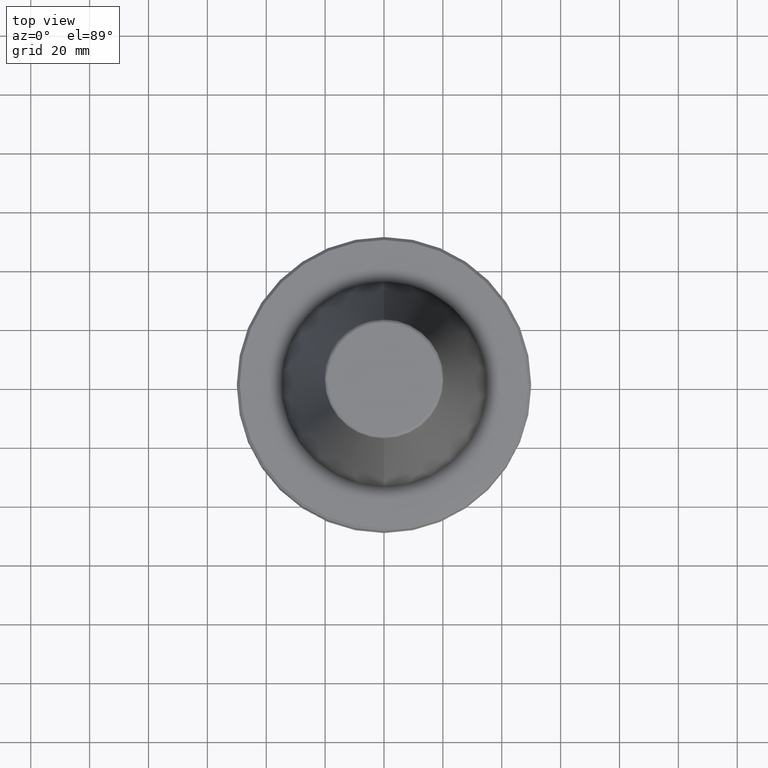
[diagram: clean part render]
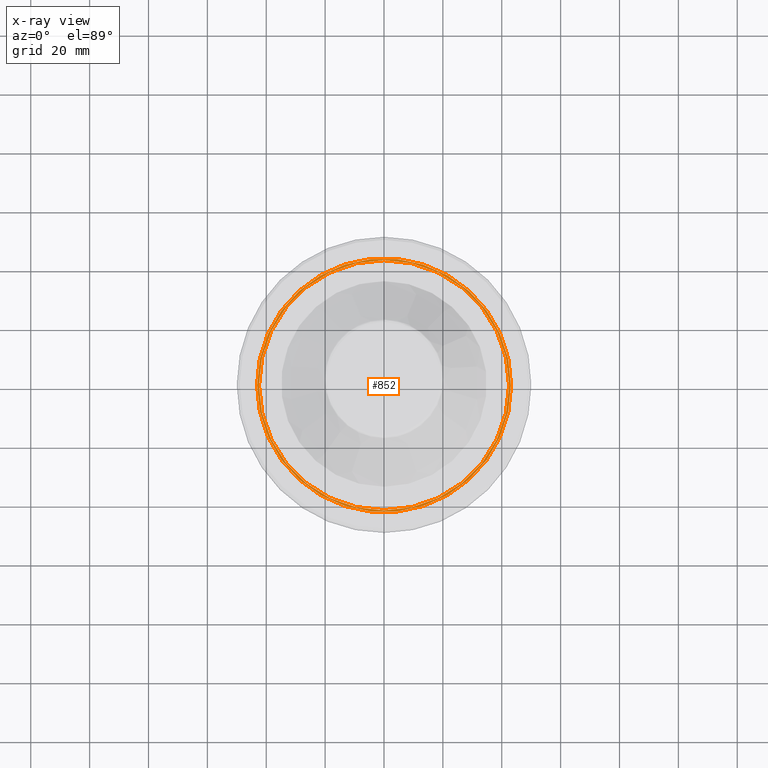
[diagram: x-ray — body ghosted, one internal face saturated and labeled with its STEP entity id]
A machine part, top view, then the same camera in x-ray: the body is ghosted and one INTERNAL B-rep face — a face not visible from any outside direction — is saturated and labeled: STEP entity #852.
In plain terms, the highlighted planar face has unit normal (0, 0, -1).
Its self-contained STEP definition (entity closure, byte-faithful):
#52 = EDGE_CURVE ( 'NONE', #1531, #496, #1753, .T. ) ;
#113 = EDGE_LOOP ( 'NONE', ( #197, #1711 ) ) ;
#152 = CIRCLE ( 'NONE', #1912, 43.12131331997666500 ) ;
#185 = DIRECTION ( 'NONE',  ( -1.000000000000000000, 0.0000000000000000000, -0.0000000000000000000 ) ) ;
#187 = EDGE_CURVE ( 'NONE', #518, #855, #530, .T. ) ;
#188 = DIRECTION ( 'NONE',  ( 0.0000000000000000000, 0.0000000000000000000, -1.000000000000000000 ) ) ;
#189 = DIRECTION ( 'NONE',  ( 1.000000000000000000, 0.0000000000000000000, 0.0000000000000000000 ) ) ;
#193 = DIRECTION ( 'NONE',  ( -0.0000000000000000000, -0.0000000000000000000, 1.000000000000000000 ) ) ;
#195 = CARTESIAN_POINT ( 'NONE',  ( 0.0000000000000000000, 0.0000000000000000000, -26.69999999765138200 ) ) ;
#197 = ORIENTED_EDGE ( 'NONE', *, *, #187, .F. ) ;
#198 = CARTESIAN_POINT ( 'NONE',  ( -42.50000000000000000, 5.204748896376250900E-015, -26.70000000074191600 ) ) ;
#201 = PLANE ( 'NONE',  #457 ) ;
#205 = CARTESIAN_POINT ( 'NONE',  ( 41.98144508399999400, 11.58965055600000200, -26.70000000000000600 ) ) ;
#427 = CARTESIAN_POINT ( 'NONE',  ( 42.50000000000000000, 0.0000000000000000000, -26.70000000074191600 ) ) ;
#457 = AXIS2_PLACEMENT_3D ( 'NONE', #205, #188, #185 ) ;
#479 = CARTESIAN_POINT ( 'NONE',  ( 43.12131331997666500, 5.702035914485360400E-015, -26.69999999765138200 ) ) ;
#496 = VERTEX_POINT ( 'NONE', #479 ) ;
#518 = VERTEX_POINT ( 'NONE', #427 ) ;
#530 = CIRCLE ( 'NONE', #1987, 42.50000000000000000 ) ;
#780 = CARTESIAN_POINT ( 'NONE',  ( 0.0000000000000000000, 0.0000000000000000000, -26.70000000074191600 ) ) ;
#809 = FACE_BOUND ( 'NONE', #113, .T. ) ;
#824 = AXIS2_PLACEMENT_3D ( 'NONE', #1041, #1636, #1114 ) ;
#846 = EDGE_CURVE ( 'NONE', #496, #1531, #152, .T. ) ;
#852 = ADVANCED_FACE ( 'NONE', ( #809, #1719 ), #201, .F. ) ;
#855 = VERTEX_POINT ( 'NONE', #198 ) ;
#939 = DIRECTION ( 'NONE',  ( 1.000000000000000000, 0.0000000000000000000, 0.0000000000000000000 ) ) ;
#1041 = CARTESIAN_POINT ( 'NONE',  ( 0.0000000000000000000, 0.0000000000000000000, -26.69999999765138200 ) ) ;
#1110 = EDGE_LOOP ( 'NONE', ( #1296, #1449 ) ) ;
#1114 = DIRECTION ( 'NONE',  ( 1.000000000000000000, 0.0000000000000000000, 0.0000000000000000000 ) ) ;
#1115 = DIRECTION ( 'NONE',  ( 1.000000000000000000, 0.0000000000000000000, 0.0000000000000000000 ) ) ;
#1116 = DIRECTION ( 'NONE',  ( 0.0000000000000000000, 0.0000000000000000000, 1.000000000000000000 ) ) ;
#1120 = CARTESIAN_POINT ( 'NONE',  ( 0.0000000000000000000, 0.0000000000000000000, -26.70000000074191600 ) ) ;
#1296 = ORIENTED_EDGE ( 'NONE', *, *, #52, .T. ) ;
#1417 = AXIS2_PLACEMENT_3D ( 'NONE', #1120, #1116, #1115 ) ;
#1449 = ORIENTED_EDGE ( 'NONE', *, *, #846, .T. ) ;
#1507 = CARTESIAN_POINT ( 'NONE',  ( -43.12131331997666500, 0.0000000000000000000, -26.69999999765138200 ) ) ;
#1513 = DIRECTION ( 'NONE',  ( 0.0000000000000000000, 0.0000000000000000000, 1.000000000000000000 ) ) ;
#1531 = VERTEX_POINT ( 'NONE', #1507 ) ;
#1559 = EDGE_CURVE ( 'NONE', #855, #518, #2053, .T. ) ;
#1636 = DIRECTION ( 'NONE',  ( -0.0000000000000000000, -0.0000000000000000000, 1.000000000000000000 ) ) ;
#1711 = ORIENTED_EDGE ( 'NONE', *, *, #1559, .F. ) ;
#1719 = FACE_OUTER_BOUND ( 'NONE', #1110, .T. ) ;
#1753 = CIRCLE ( 'NONE', #824, 43.12131331997666500 ) ;
#1912 = AXIS2_PLACEMENT_3D ( 'NONE', #195, #193, #189 ) ;
#1987 = AXIS2_PLACEMENT_3D ( 'NONE', #780, #1513, #939 ) ;
#2053 = CIRCLE ( 'NONE', #1417, 42.50000000000000000 ) ;